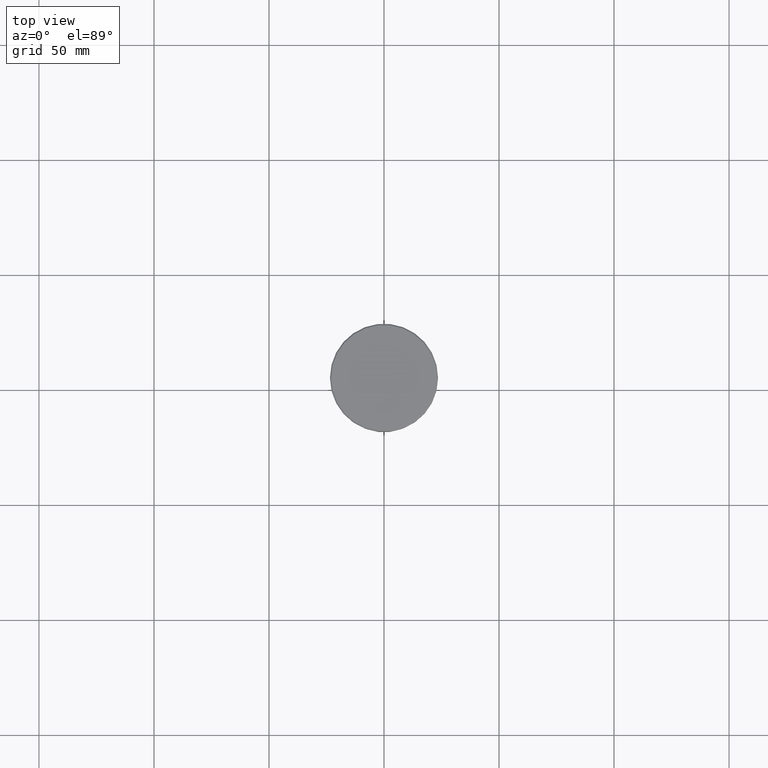
[diagram: clean part render]
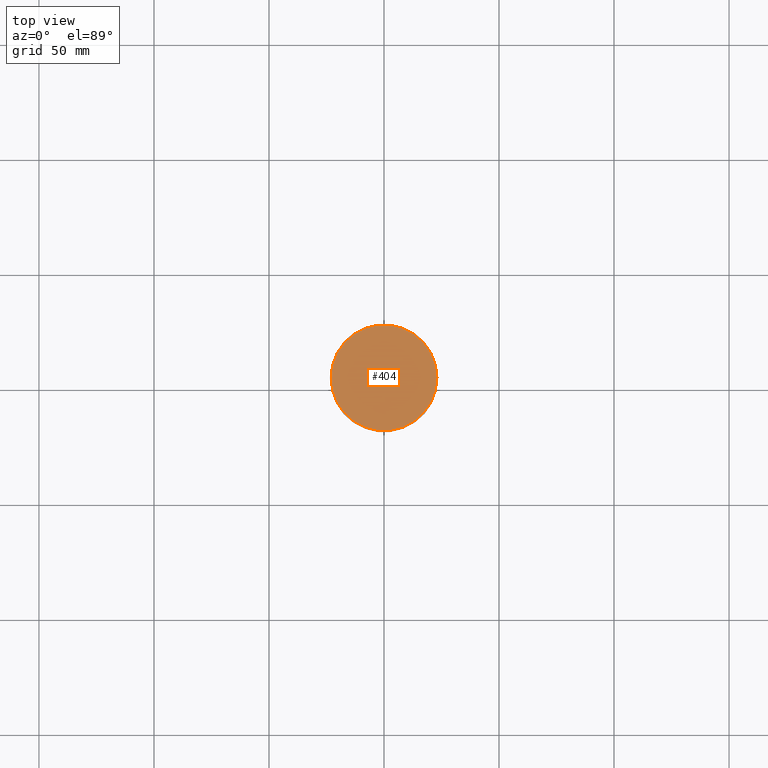
[diagram: same view with one face highlighted and labeled with its STEP entity id]
A machine part, top view. The second image highlights one B-rep face of the part: STEP entity #404.
In plain terms, the highlighted planar face has unit normal (0, -0, 1).
Its self-contained STEP definition (entity closure, byte-faithful):
#25 = AXIS2_PLACEMENT_3D ( 'NONE', #261, #168, #544 ) ;
#58 = EDGE_CURVE ( 'NONE', #409, #707, #1095, .T. ) ;
#103 = EDGE_CURVE ( 'NONE', #707, #409, #650, .T. ) ;
#134 = AXIS2_PLACEMENT_3D ( 'NONE', #642, #647, #552 ) ;
#135 = AXIS2_PLACEMENT_3D ( 'NONE', #612, #854, #1028 ) ;
#168 = DIRECTION ( 'NONE',  ( -0.000000000000000000, -0.000000000000000000, 1.000000000000000000 ) ) ;
#261 = CARTESIAN_POINT ( 'NONE',  ( 0.000000000000000000, 0.000000000000000000, 0.000000000000000000 ) ) ;
#310 = FACE_OUTER_BOUND ( 'NONE', #373, .T. ) ;
#354 = CARTESIAN_POINT ( 'NONE',  ( -23.00000000000002487, 0.000000000000000000, 0.000000000000000000 ) ) ;
#373 = EDGE_LOOP ( 'NONE', ( #744, #1164 ) ) ;
#404 = ADVANCED_FACE ( 'NONE', ( #310 ), #405, .T. ) ;
#405 = PLANE ( 'NONE',  #135 ) ;
#409 = VERTEX_POINT ( 'NONE', #1040 ) ;
#544 = DIRECTION ( 'NONE',  ( 1.000000000000000000, 0.000000000000000000, 0.000000000000000000 ) ) ;
#552 = DIRECTION ( 'NONE',  ( 1.000000000000000000, 0.000000000000000000, 0.000000000000000000 ) ) ;
#612 = CARTESIAN_POINT ( 'NONE',  ( 0.000000000000000000, 0.000000000000000000, 0.000000000000000000 ) ) ;
#642 = CARTESIAN_POINT ( 'NONE',  ( 0.000000000000000000, 0.000000000000000000, 0.000000000000000000 ) ) ;
#647 = DIRECTION ( 'NONE',  ( -0.000000000000000000, -0.000000000000000000, 1.000000000000000000 ) ) ;
#650 = CIRCLE ( 'NONE', #25, 23.00000000000002487 ) ;
#707 = VERTEX_POINT ( 'NONE', #354 ) ;
#744 = ORIENTED_EDGE ( 'NONE', *, *, #103, .T. ) ;
#854 = DIRECTION ( 'NONE',  ( 0.000000000000000000, -0.000000000000000000, 1.000000000000000000 ) ) ;
#1028 = DIRECTION ( 'NONE',  ( 1.000000000000000000, 0.000000000000000000, 0.000000000000000000 ) ) ;
#1040 = CARTESIAN_POINT ( 'NONE',  ( 23.00000000000002487, 2.847303808017597717E-15, 0.000000000000000000 ) ) ;
#1095 = CIRCLE ( 'NONE', #134, 23.00000000000002487 ) ;
#1164 = ORIENTED_EDGE ( 'NONE', *, *, #58, .T. ) ;